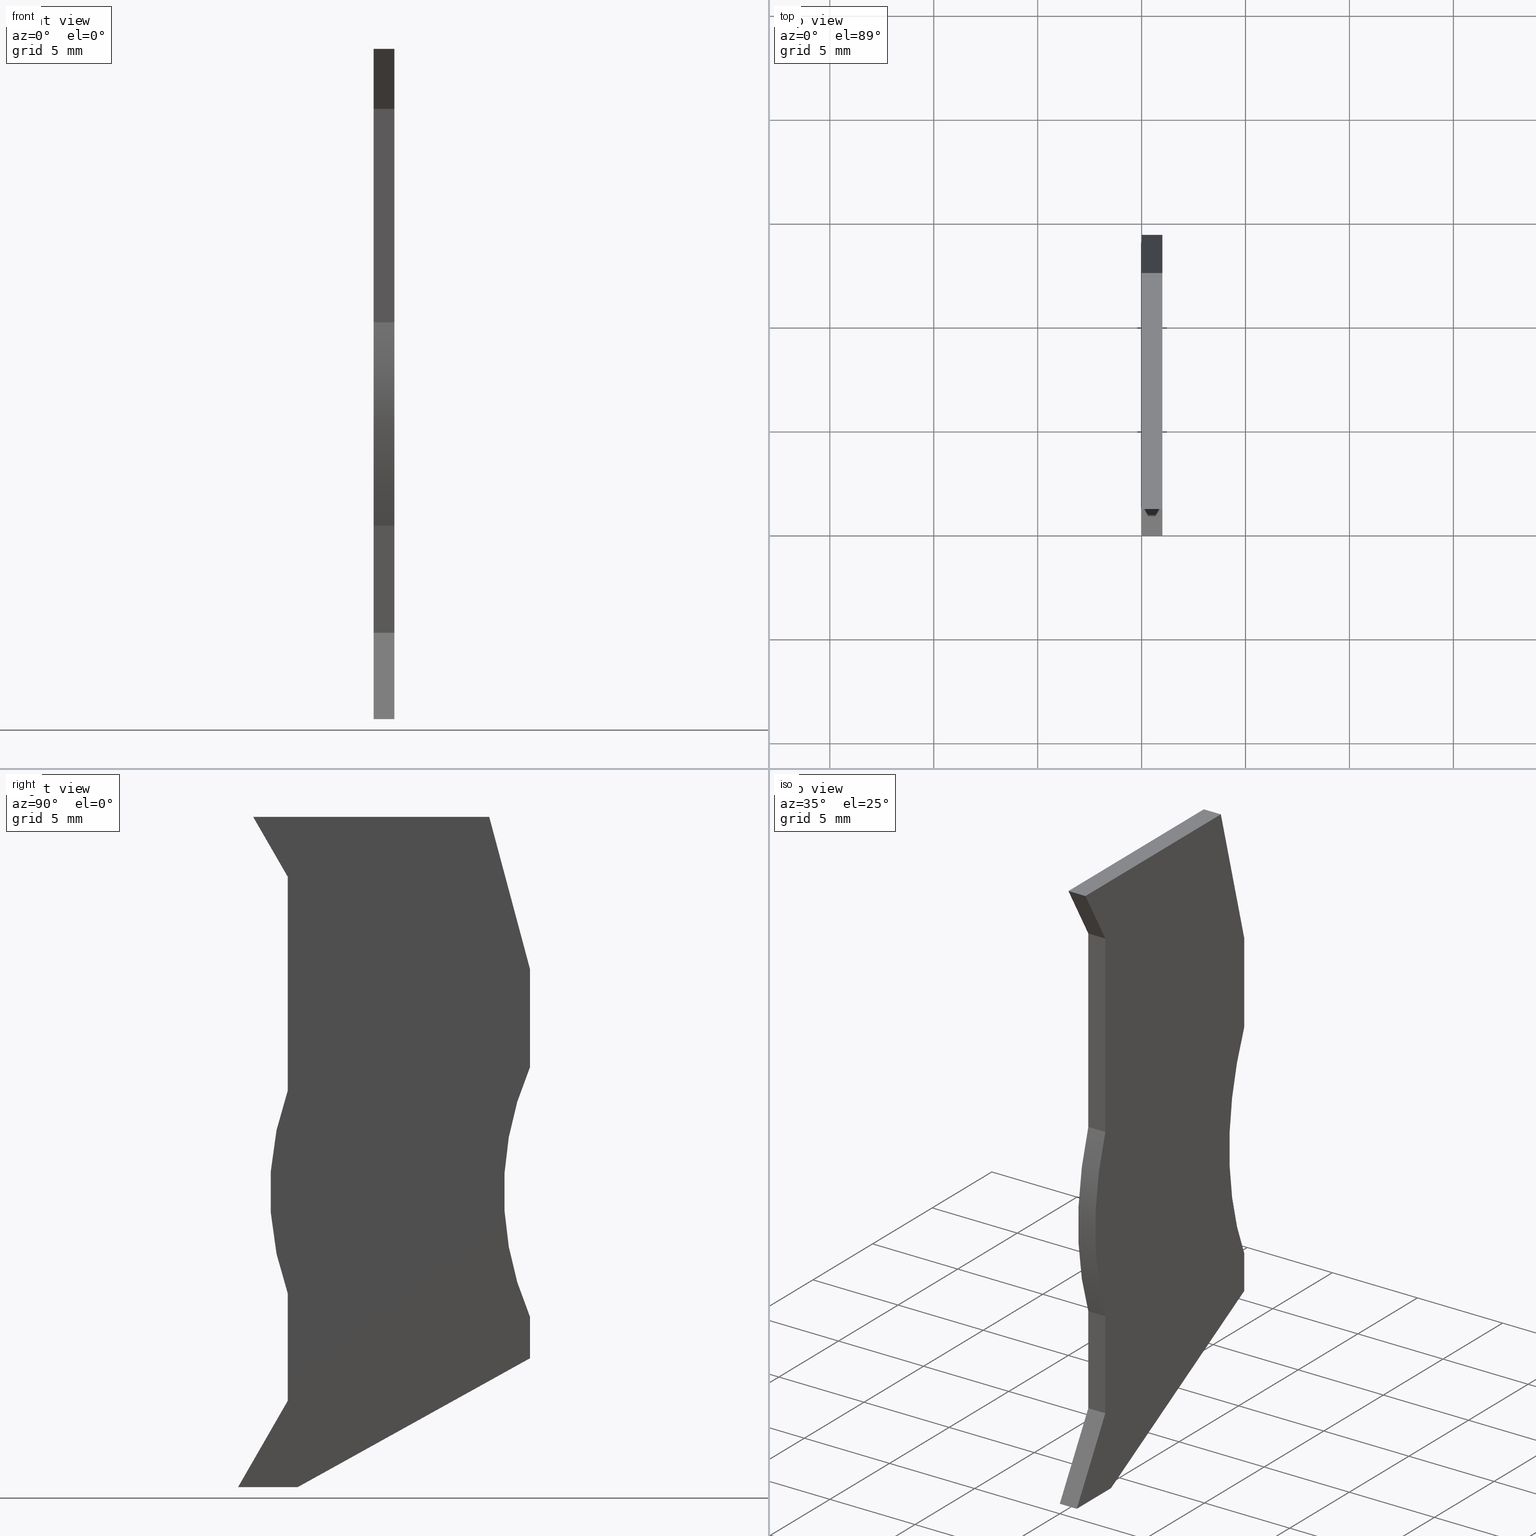
[diagram: canonical four-view strip — front | top / right | iso, engineering-drawing reading convention]
A machine part, canonical four-view strip (front | top / right | iso — engineering-drawing reading convention). The complete STEP part file that produces these views, byte-faithful:
ISO-10303-21;
HEADER;
FILE_DESCRIPTION(('Creo Elements/Direct Modeling STEP Export'),'2;1');
FILE_NAME(
'C:/temp/JobSpoolerServerData/JobServer Files/9aaa98fc-2ed4-4227-ac7a-e6
331463b2b5/work/output/model.stp','2020-01-20T12:26:51',(''),(''),
'Creo Elements/Direct Modeling STEP processor for AP214 (Solid Model)',
'Creo Elements/Direct Modeling 20.1A  29-Sep-2018 (C) Parametric Technol
ogy GmbH','');
FILE_SCHEMA(('AUTOMOTIVE_DESIGN { 1 0 10303 214 1 1 1 1 }'));
ENDSEC;
DATA;
#10=CARTESIAN_POINT('',(39.9798943065431,-27.2000000000027,50.9699976));
#20=DIRECTION('',(0.,0.,1.));
#30=DIRECTION('',(1.,0.,0.));
#40=AXIS2_PLACEMENT_3D('',#10,#20,#30);
#50=CYLINDRICAL_SURFACE('',#40,14.45);
#60=CARTESIAN_POINT('',(39.9798943065431,-27.2000000000027,54.17));
#70=DIRECTION('',(0.,0.,1.));
#80=DIRECTION('',(1.,0.,0.));
#90=AXIS2_PLACEMENT_3D('',#60,#70,#80);
#100=CIRCLE('',#90,14.45);
#110=CARTESIAN_POINT('',(26.3821672216756,-22.3107957574434,54.17));
#120=VERTEX_POINT('',#110);
#130=CARTESIAN_POINT('',(26.3821672216756,-32.0892042425621,54.17));
#140=VERTEX_POINT('',#130);
#150=EDGE_CURVE('',#120,#140,#100,.T.);
#160=ORIENTED_EDGE('',*,*,#150,.F.);
#170=CARTESIAN_POINT('',(26.3821672216756,-32.0892042425621,50.9699976))
;
#180=DIRECTION('',(0.,0.,1.));
#190=VECTOR('',#180,1.);
#200=LINE('',#170,#190);
#210=CARTESIAN_POINT('',(26.3821672216756,-32.0892042425621,53.17));
#220=VERTEX_POINT('',#210);
#230=EDGE_CURVE('',#220,#140,#200,.T.);
#240=ORIENTED_EDGE('',*,*,#230,.T.);
#250=CARTESIAN_POINT('',(39.9798943065431,-27.2000000000027,53.17));
#260=DIRECTION('',(0.,0.,1.));
#270=DIRECTION('',(1.,0.,0.));
#280=AXIS2_PLACEMENT_3D('',#250,#260,#270);
#290=CIRCLE('',#280,14.45);
#300=CARTESIAN_POINT('',(26.3821672216756,-22.3107957574434,53.17));
#310=VERTEX_POINT('',#300);
#320=EDGE_CURVE('',#310,#220,#290,.T.);
#330=ORIENTED_EDGE('',*,*,#320,.T.);
#340=CARTESIAN_POINT('',(26.3821672216756,-22.3107957574434,50.9699976))
;
#350=DIRECTION('',(0.,0.,1.));
#360=VECTOR('',#350,1.);
#370=LINE('',#340,#360);
#380=EDGE_CURVE('',#310,#120,#370,.T.);
#390=ORIENTED_EDGE('',*,*,#380,.F.);
#400=EDGE_LOOP('',(#390,#330,#240,#160));
#410=FACE_OUTER_BOUND('',#400,.T.);
#420=ADVANCED_FACE('',(#410),#50,.T.);
#430=COLOUR_RGB('',0.560784339904785,0.588235318660736,0.600000023841858
);
#440=FILL_AREA_STYLE_COLOUR('',#430);
#450=FILL_AREA_STYLE('',(#440));
#460=SURFACE_STYLE_FILL_AREA(#450);
#470=SURFACE_SIDE_STYLE('',(#460));
#480=SURFACE_STYLE_USAGE(.BOTH.,#470);
#490=PRESENTATION_STYLE_ASSIGNMENT((#480));
#500=CARTESIAN_POINT('',(26.3821672216756,-16.6907571511978,
53.6251825304374));
#510=DIRECTION('',(-1.,0.,0.));
#520=DIRECTION('',(0.,-1.,0.));
#530=AXIS2_PLACEMENT_3D('',#500,#510,#520);
#540=PLANE('',#530);
#550=CARTESIAN_POINT('',(26.3821672216756,-12.0389416166838,53.17));
#560=DIRECTION('',(0.,0.,1.));
#570=VECTOR('',#560,1.);
#580=LINE('',#550,#570);
#590=CARTESIAN_POINT('',(26.3821672216756,-12.0389416166838,53.17));
#600=VERTEX_POINT('',#590);
#610=CARTESIAN_POINT('',(26.3821672216756,-12.0389416166838,54.17));
#620=VERTEX_POINT('',#610);
#630=EDGE_CURVE('',#600,#620,#580,.T.);
#640=ORIENTED_EDGE('',*,*,#630,.F.);
#650=CARTESIAN_POINT('',(26.3821672216756,-12.1300507694265,54.17));
#660=DIRECTION('',(0.,1.,0.));
#670=VECTOR('',#660,1.);
#680=LINE('',#650,#670);
#690=EDGE_CURVE('',#120,#620,#680,.T.);
#700=ORIENTED_EDGE('',*,*,#690,.T.);
#710=ORIENTED_EDGE('',*,*,#380,.T.);
#720=CARTESIAN_POINT('',(26.3821672216756,-12.1300507694265,53.17));
#730=DIRECTION('',(0.,1.,0.));
#740=VECTOR('',#730,1.);
#750=LINE('',#720,#740);
#760=EDGE_CURVE('',#310,#600,#750,.T.);
#770=ORIENTED_EDGE('',*,*,#760,.F.);
#780=EDGE_LOOP('',(#770,#710,#700,#640));
#790=FACE_OUTER_BOUND('',#780,.T.);
#800=ADVANCED_FACE('',(#790),#540,.T.);
#810=COLOUR_RGB('',0.560784339904785,0.588235318660736,0.600000023841858
);
#820=FILL_AREA_STYLE_COLOUR('',#810);
#830=FILL_AREA_STYLE('',(#820));
#840=SURFACE_STYLE_FILL_AREA(#830);
#850=SURFACE_SIDE_STYLE('',(#840));
#860=SURFACE_STYLE_USAGE(.BOTH.,#850);
#870=PRESENTATION_STYLE_ASSIGNMENT((#860));
#880=CARTESIAN_POINT('',(20.5944734665811,-41.4000000000014,54.07));
#890=DIRECTION('',(0.,1.,0.));
#900=DIRECTION('',(0.,0.,-1.));
#910=AXIS2_PLACEMENT_3D('',#880,#890,#900);
#920=PLANE('',#910);
#930=CARTESIAN_POINT('',(11.4461541156283,-41.4000000000014,53.17));
#940=DIRECTION('',(1.,0.,0.));
#950=VECTOR('',#940,1.);
#960=LINE('',#930,#950);
#970=CARTESIAN_POINT('',(23.9882355597288,-41.4000000000014,53.17));
#980=VERTEX_POINT('',#970);
#990=CARTESIAN_POINT('',(26.8570992376999,-41.4000000000014,53.17));
#1000=VERTEX_POINT('',#990);
#1010=EDGE_CURVE('',#980,#1000,#960,.T.);
#1020=ORIENTED_EDGE('',*,*,#1010,.T.);
#1030=CARTESIAN_POINT('',(23.9882355597288,-41.4000000000014,53.17));
#1040=DIRECTION('',(0.,0.,1.));
#1050=VECTOR('',#1040,1.);
#1060=LINE('',#1030,#1050);
#1070=CARTESIAN_POINT('',(23.9882355597288,-41.4000000000014,54.17));
#1080=VERTEX_POINT('',#1070);
#1090=EDGE_CURVE('',#980,#1080,#1060,.T.);
#1100=ORIENTED_EDGE('',*,*,#1090,.F.);
#1110=CARTESIAN_POINT('',(11.4461541156283,-41.4000000000014,54.17));
#1120=DIRECTION('',(1.,0.,0.));
#1130=VECTOR('',#1120,1.);
#1140=LINE('',#1110,#1130);
#1150=CARTESIAN_POINT('',(26.8570992376999,-41.4000000000014,54.17));
#1160=VERTEX_POINT('',#1150);
#1170=EDGE_CURVE('',#1080,#1160,#1140,.T.);
#1180=ORIENTED_EDGE('',*,*,#1170,.F.);
#1190=CARTESIAN_POINT('',(26.8570992376999,-41.4000000000014,53.17));
#1200=DIRECTION('',(0.,0.,1.));
#1210=VECTOR('',#1200,1.);
#1220=LINE('',#1190,#1210);
#1230=EDGE_CURVE('',#1000,#1160,#1220,.T.);
#1240=ORIENTED_EDGE('',*,*,#1230,.T.);
#1250=EDGE_LOOP('',(#1240,#1180,#1100,#1020));
#1260=FACE_OUTER_BOUND('',#1250,.T.);
#1270=ADVANCED_FACE('',(#1260),#920,.F.);
#1280=COLOUR_RGB('',0.560784339904785,0.588235318660736,
0.600000023841858);
#1290=FILL_AREA_STYLE_COLOUR('',#1280);
#1300=FILL_AREA_STYLE('',(#1290));
#1310=SURFACE_STYLE_FILL_AREA(#1300);
#1320=SURFACE_SIDE_STYLE('',(#1310));
#1330=SURFACE_STYLE_USAGE(.BOTH.,#1320);
#1340=PRESENTATION_STYLE_ASSIGNMENT((#1330));
#1350=CARTESIAN_POINT('',(37.566407,-18.948959,54.17));
#1360=DIRECTION('',(0.,0.,1.));
#1370=DIRECTION('',(1.,0.,0.));
#1380=AXIS2_PLACEMENT_3D('',#1350,#1360,#1370);
#1390=PLANE('',#1380);
#1400=CARTESIAN_POINT('',(40.8323685970354,-12.1300507694265,54.17));
#1410=DIRECTION('',(0.498780693240353,0.86672822733004,0.));
#1420=VECTOR('',#1410,1.);
#1430=LINE('',#1400,#1420);
#1440=CARTESIAN_POINT('',(26.3821672216756,-37.2400792696525,54.17));
#1450=VERTEX_POINT('',#1440);
#1460=EDGE_CURVE('',#1080,#1450,#1430,.T.);
#1470=ORIENTED_EDGE('',*,*,#1460,.F.);
#1480=CARTESIAN_POINT('',(26.3821672216756,-12.1300507694265,54.17));
#1490=DIRECTION('',(0.,-1.,0.));
#1500=VECTOR('',#1490,1.);
#1510=LINE('',#1480,#1500);
#1520=EDGE_CURVE('',#140,#1450,#1510,.T.);
#1530=ORIENTED_EDGE('',*,*,#1520,.T.);
#1540=ORIENTED_EDGE('',*,*,#150,.T.);
#1550=ORIENTED_EDGE('',*,*,#690,.F.);
#1560=CARTESIAN_POINT('',(26.4347691155372,-12.1300507694265,54.17));
#1570=DIRECTION('',(0.499999999999997,-0.86602540378444,0.));
#1580=VECTOR('',#1570,1.);
#1590=LINE('',#1560,#1580);
#1600=CARTESIAN_POINT('',(24.7142360016119,-9.15000000000323,54.17));
#1610=VERTEX_POINT('',#1600);
#1620=EDGE_CURVE('',#1610,#620,#1590,.T.);
#1630=ORIENTED_EDGE('',*,*,#1620,.T.);
#1640=CARTESIAN_POINT('',(11.4461541156283,-9.15000000000323,54.17));
#1650=DIRECTION('',(1.,0.,0.));
#1660=VECTOR('',#1650,1.);
#1670=LINE('',#1640,#1660);
#1680=CARTESIAN_POINT('',(36.0719729923296,-9.15000000000323,54.17));
#1690=VERTEX_POINT('',#1680);
#1700=EDGE_CURVE('',#1610,#1690,#1670,.T.);
#1710=ORIENTED_EDGE('',*,*,#1700,.F.);
#1720=CARTESIAN_POINT('',(36.8704751894023,-12.1300507694265,54.17));
#1730=DIRECTION('',(0.258819045103111,-0.96592582628891,0.));
#1740=VECTOR('',#1730,1.);
#1750=LINE('',#1720,#1740);
#1760=CARTESIAN_POINT('',(38.0321672216756,-16.4655444566078,54.17));
#1770=VERTEX_POINT('',#1760);
#1780=EDGE_CURVE('',#1690,#1770,#1750,.T.);
#1790=ORIENTED_EDGE('',*,*,#1780,.F.);
#1800=CARTESIAN_POINT('',(38.0321672216756,-12.1300507694265,54.17));
#1810=DIRECTION('',(0.,-1.,0.));
#1820=VECTOR('',#1810,1.);
#1830=LINE('',#1800,#1820);
#1840=CARTESIAN_POINT('',(38.0321672216756,-21.2000000000027,54.17));
#1850=VERTEX_POINT('',#1840);
#1860=EDGE_CURVE('',#1770,#1850,#1830,.T.);
#1870=ORIENTED_EDGE('',*,*,#1860,.F.);
#1880=CARTESIAN_POINT('',(51.7798943065431,-27.2000000000027,54.17));
#1890=DIRECTION('',(0.,0.,1.));
#1900=DIRECTION('',(1.,0.,0.));
#1910=AXIS2_PLACEMENT_3D('',#1880,#1890,#1900);
#1920=CIRCLE('',#1910,15.);
#1930=CARTESIAN_POINT('',(38.0321672216756,-33.2000000000027,54.17));
#1940=VERTEX_POINT('',#1930);
#1950=EDGE_CURVE('',#1850,#1940,#1920,.T.);
#1960=ORIENTED_EDGE('',*,*,#1950,.F.);
#1970=CARTESIAN_POINT('',(38.0321672216756,-12.1300507694265,54.17));
#1980=DIRECTION('',(0.,-1.,0.));
#1990=VECTOR('',#1980,1.);
#2000=LINE('',#1970,#1990);
#2010=CARTESIAN_POINT('',(38.0321672216756,-35.2,54.17));
#2020=VERTEX_POINT('',#2010);
#2030=EDGE_CURVE('',#1940,#2020,#2000,.T.);
#2040=ORIENTED_EDGE('',*,*,#2030,.F.);
#2050=CARTESIAN_POINT('',(11.4461541156283,-49.9500920346875,54.17));
#2060=DIRECTION('',(-0.874435210897321,-0.485142311021167,0.));
#2070=VECTOR('',#2060,1.);
#2080=LINE('',#2050,#2070);
#2090=EDGE_CURVE('',#2020,#1160,#2080,.T.);
#2100=ORIENTED_EDGE('',*,*,#2090,.F.);
#2110=ORIENTED_EDGE('',*,*,#1170,.T.);
#2120=EDGE_LOOP('',(#2110,#2100,#2040,#1960,#1870,#1790,#1710,#1630,
#1550,#1540,#1530,#1470));
#2130=FACE_OUTER_BOUND('',#2120,.T.);
#2140=ADVANCED_FACE('',(#2130),#1390,.T.);
#2150=COLOUR_RGB('',0.560784339904785,0.588235318660736,
0.600000023841858);
#2160=FILL_AREA_STYLE_COLOUR('',#2150);
#2170=FILL_AREA_STYLE('',(#2160));
#2180=SURFACE_STYLE_FILL_AREA(#2170);
#2190=SURFACE_SIDE_STYLE('',(#2180));
#2200=SURFACE_STYLE_USAGE(.BOTH.,#2190);
#2210=PRESENTATION_STYLE_ASSIGNMENT((#2200));
#2220=CARTESIAN_POINT('',(-16.4428327783246,-9.15000000000323,53.17));
#2230=DIRECTION('',(-0.,1.,0.));
#2240=DIRECTION('',(1.,0.,0.));
#2250=AXIS2_PLACEMENT_3D('',#2220,#2230,#2240);
#2260=PLANE('',#2250);
#2270=CARTESIAN_POINT('',(36.0719729923296,-9.15000000000323,53.17));
#2280=DIRECTION('',(0.,0.,1.));
#2290=VECTOR('',#2280,1.);
#2300=LINE('',#2270,#2290);
#2310=CARTESIAN_POINT('',(36.0719729923296,-9.15000000000323,53.17));
#2320=VERTEX_POINT('',#2310);
#2330=EDGE_CURVE('',#2320,#1690,#2300,.T.);
#2340=ORIENTED_EDGE('',*,*,#2330,.F.);
#2350=ORIENTED_EDGE('',*,*,#1700,.T.);
#2360=CARTESIAN_POINT('',(24.7142360016119,-9.15000000000323,53.17));
#2370=DIRECTION('',(0.,0.,-1.));
#2380=VECTOR('',#2370,1.);
#2390=LINE('',#2360,#2380);
#2400=CARTESIAN_POINT('',(24.7142360016119,-9.15000000000323,53.17));
#2410=VERTEX_POINT('',#2400);
#2420=EDGE_CURVE('',#1610,#2410,#2390,.T.);
#2430=ORIENTED_EDGE('',*,*,#2420,.F.);
#2440=CARTESIAN_POINT('',(11.4461541156283,-9.15000000000323,53.17));
#2450=DIRECTION('',(1.,0.,0.));
#2460=VECTOR('',#2450,1.);
#2470=LINE('',#2440,#2460);
#2480=EDGE_CURVE('',#2410,#2320,#2470,.T.);
#2490=ORIENTED_EDGE('',*,*,#2480,.F.);
#2500=EDGE_LOOP('',(#2490,#2430,#2350,#2340));
#2510=FACE_OUTER_BOUND('',#2500,.T.);
#2520=ADVANCED_FACE('',(#2510),#2260,.T.);
#2530=COLOUR_RGB('',0.560784339904785,0.588235318660736,
0.600000023841858);
#2540=FILL_AREA_STYLE_COLOUR('',#2530);
#2550=FILL_AREA_STYLE('',(#2540));
#2560=SURFACE_STYLE_FILL_AREA(#2550);
#2570=SURFACE_SIDE_STYLE('',(#2560));
#2580=SURFACE_STYLE_USAGE(.BOTH.,#2570);
#2590=PRESENTATION_STYLE_ASSIGNMENT((#2580));
#2600=CARTESIAN_POINT('',(38.0321672216756,-33.2000000000027,53.17));
#2610=DIRECTION('',(1.,0.,0.));
#2620=DIRECTION('',(0.,-1.,0.));
#2630=AXIS2_PLACEMENT_3D('',#2600,#2610,#2620);
#2640=PLANE('',#2630);
#2650=CARTESIAN_POINT('',(38.0321672216756,-12.1300507694265,53.17));
#2660=DIRECTION('',(0.,-1.,0.));
#2670=VECTOR('',#2660,1.);
#2680=LINE('',#2650,#2670);
#2690=CARTESIAN_POINT('',(38.0321672216756,-33.2000000000027,53.17));
#2700=VERTEX_POINT('',#2690);
#2710=CARTESIAN_POINT('',(38.0321672216756,-35.2,53.17));
#2720=VERTEX_POINT('',#2710);
#2730=EDGE_CURVE('',#2700,#2720,#2680,.T.);
#2740=ORIENTED_EDGE('',*,*,#2730,.F.);
#2750=CARTESIAN_POINT('',(38.0321672216756,-35.2,53.17));
#2760=DIRECTION('',(0.,0.,1.));
#2770=VECTOR('',#2760,1.);
#2780=LINE('',#2750,#2770);
#2790=EDGE_CURVE('',#2720,#2020,#2780,.T.);
#2800=ORIENTED_EDGE('',*,*,#2790,.F.);
#2810=ORIENTED_EDGE('',*,*,#2030,.T.);
#2820=CARTESIAN_POINT('',(38.0321672216756,-33.2000000000027,53.17));
#2830=DIRECTION('',(0.,0.,1.));
#2840=VECTOR('',#2830,1.);
#2850=LINE('',#2820,#2840);
#2860=EDGE_CURVE('',#2700,#1940,#2850,.T.);
#2870=ORIENTED_EDGE('',*,*,#2860,.T.);
#2880=EDGE_LOOP('',(#2870,#2810,#2800,#2740));
#2890=FACE_OUTER_BOUND('',#2880,.T.);
#2900=ADVANCED_FACE('',(#2890),#2640,.T.);
#2910=COLOUR_RGB('',0.560784339904785,0.588235318660736,
0.600000023841858);
#2920=FILL_AREA_STYLE_COLOUR('',#2910);
#2930=FILL_AREA_STYLE('',(#2920));
#2940=SURFACE_STYLE_FILL_AREA(#2930);
#2950=SURFACE_SIDE_STYLE('',(#2940));
#2960=SURFACE_STYLE_USAGE(.BOTH.,#2950);
#2970=PRESENTATION_STYLE_ASSIGNMENT((#2960));
#2980=CARTESIAN_POINT('',(38.0321672216756,-16.5103385634681,53.17));
#2990=DIRECTION('',(1.,0.,0.));
#3000=DIRECTION('',(0.,-1.,0.));
#3010=AXIS2_PLACEMENT_3D('',#2980,#2990,#3000);
#3020=PLANE('',#3010);
#3030=CARTESIAN_POINT('',(38.0321672216756,-12.1300507694265,53.17));
#3040=DIRECTION('',(0.,-1.,0.));
#3050=VECTOR('',#3040,1.);
#3060=LINE('',#3030,#3050);
#3070=CARTESIAN_POINT('',(38.0321672216756,-16.4655444566078,53.17));
#3080=VERTEX_POINT('',#3070);
#3090=CARTESIAN_POINT('',(38.0321672216756,-21.2000000000027,53.17));
#3100=VERTEX_POINT('',#3090);
#3110=EDGE_CURVE('',#3080,#3100,#3060,.T.);
#3120=ORIENTED_EDGE('',*,*,#3110,.F.);
#3130=CARTESIAN_POINT('',(38.0321672216756,-21.2000000000027,53.17));
#3140=DIRECTION('',(0.,0.,1.));
#3150=VECTOR('',#3140,1.);
#3160=LINE('',#3130,#3150);
#3170=EDGE_CURVE('',#3100,#1850,#3160,.T.);
#3180=ORIENTED_EDGE('',*,*,#3170,.F.);
#3190=ORIENTED_EDGE('',*,*,#1860,.T.);
#3200=CARTESIAN_POINT('',(38.0321672216756,-16.4655444566078,53.17));
#3210=DIRECTION('',(0.,0.,1.));
#3220=VECTOR('',#3210,1.);
#3230=LINE('',#3200,#3220);
#3240=EDGE_CURVE('',#3080,#1770,#3230,.T.);
#3250=ORIENTED_EDGE('',*,*,#3240,.T.);
#3260=EDGE_LOOP('',(#3250,#3190,#3180,#3120));
#3270=FACE_OUTER_BOUND('',#3260,.T.);
#3280=ADVANCED_FACE('',(#3270),#3020,.T.);
#3290=COLOUR_RGB('',0.560784339904785,0.588235318660736,
0.600000023841858);
#3300=FILL_AREA_STYLE_COLOUR('',#3290);
#3310=FILL_AREA_STYLE('',(#3300));
#3320=SURFACE_STYLE_FILL_AREA(#3310);
#3330=SURFACE_SIDE_STYLE('',(#3320));
#3340=SURFACE_STYLE_USAGE(.BOTH.,#3330);
#3350=PRESENTATION_STYLE_ASSIGNMENT((#3340));
#3360=CARTESIAN_POINT('',(22.6426603830338,-43.7381979363723,54.17));
#3370=DIRECTION('',(0.485142311021167,-0.874435210897321,0.));
#3380=DIRECTION('',(-0.874435210897321,-0.485142311021167,0.));
#3390=AXIS2_PLACEMENT_3D('',#3360,#3370,#3380);
#3400=PLANE('',#3390);
#3410=ORIENTED_EDGE('',*,*,#2090,.T.);
#3420=ORIENTED_EDGE('',*,*,#2790,.T.);
#3430=CARTESIAN_POINT('',(11.4461541156283,-49.9500920346875,53.17));
#3440=DIRECTION('',(-0.874435210897321,-0.485142311021167,0.));
#3450=VECTOR('',#3440,1.);
#3460=LINE('',#3430,#3450);
#3470=EDGE_CURVE('',#2720,#1000,#3460,.T.);
#3480=ORIENTED_EDGE('',*,*,#3470,.F.);
#3490=ORIENTED_EDGE('',*,*,#1230,.F.);
#3500=EDGE_LOOP('',(#3490,#3480,#3420,#3410));
#3510=FACE_OUTER_BOUND('',#3500,.T.);
#3520=ADVANCED_FACE('',(#3510),#3400,.T.);
#3530=COLOUR_RGB('',0.560784339904785,0.588235318660736,
0.600000023841858);
#3540=FILL_AREA_STYLE_COLOUR('',#3530);
#3550=FILL_AREA_STYLE('',(#3540));
#3560=SURFACE_STYLE_FILL_AREA(#3550);
#3570=SURFACE_SIDE_STYLE('',(#3560));
#3580=SURFACE_STYLE_USAGE(.BOTH.,#3570);
#3590=PRESENTATION_STYLE_ASSIGNMENT((#3580));
#3600=CARTESIAN_POINT('',(-9.33507517498072,-22.9764073331224,53.17));
#3610=DIRECTION('',(0.,0.,-1.));
#3620=DIRECTION('',(-1.,0.,0.));
#3630=AXIS2_PLACEMENT_3D('',#3600,#3610,#3620);
#3640=PLANE('',#3630);
#3650=ORIENTED_EDGE('',*,*,#320,.F.);
#3660=CARTESIAN_POINT('',(26.3821672216756,-12.1300507694265,53.17));
#3670=DIRECTION('',(0.,-1.,0.));
#3680=VECTOR('',#3670,1.);
#3690=LINE('',#3660,#3680);
#3700=CARTESIAN_POINT('',(26.3821672216756,-37.2400792696525,53.17));
#3710=VERTEX_POINT('',#3700);
#3720=EDGE_CURVE('',#220,#3710,#3690,.T.);
#3730=ORIENTED_EDGE('',*,*,#3720,.F.);
#3740=CARTESIAN_POINT('',(40.8323685970354,-12.1300507694265,53.17));
#3750=DIRECTION('',(0.498780693240353,0.86672822733004,0.));
#3760=VECTOR('',#3750,1.);
#3770=LINE('',#3740,#3760);
#3780=EDGE_CURVE('',#980,#3710,#3770,.T.);
#3790=ORIENTED_EDGE('',*,*,#3780,.T.);
#3800=ORIENTED_EDGE('',*,*,#1010,.F.);
#3810=ORIENTED_EDGE('',*,*,#3470,.T.);
#3820=ORIENTED_EDGE('',*,*,#2730,.T.);
#3830=CARTESIAN_POINT('',(51.7798943065431,-27.2000000000027,53.17));
#3840=DIRECTION('',(0.,0.,1.));
#3850=DIRECTION('',(1.,0.,0.));
#3860=AXIS2_PLACEMENT_3D('',#3830,#3840,#3850);
#3870=CIRCLE('',#3860,15.);
#3880=EDGE_CURVE('',#3100,#2700,#3870,.T.);
#3890=ORIENTED_EDGE('',*,*,#3880,.T.);
#3900=ORIENTED_EDGE('',*,*,#3110,.T.);
#3910=CARTESIAN_POINT('',(36.8704751894023,-12.1300507694265,53.17));
#3920=DIRECTION('',(0.258819045103111,-0.96592582628891,0.));
#3930=VECTOR('',#3920,1.);
#3940=LINE('',#3910,#3930);
#3950=EDGE_CURVE('',#2320,#3080,#3940,.T.);
#3960=ORIENTED_EDGE('',*,*,#3950,.T.);
#3970=ORIENTED_EDGE('',*,*,#2480,.T.);
#3980=CARTESIAN_POINT('',(26.4347691155372,-12.1300507694265,53.17));
#3990=DIRECTION('',(-0.499999999999997,0.86602540378444,0.));
#4000=VECTOR('',#3990,1.);
#4010=LINE('',#3980,#4000);
#4020=EDGE_CURVE('',#600,#2410,#4010,.T.);
#4030=ORIENTED_EDGE('',*,*,#4020,.T.);
#4040=ORIENTED_EDGE('',*,*,#760,.T.);
#4050=EDGE_LOOP('',(#4040,#4030,#3970,#3960,#3900,#3890,#3820,#3810,
#3800,#3790,#3730,#3650));
#4060=FACE_OUTER_BOUND('',#4050,.T.);
#4070=ADVANCED_FACE('',(#4060),#3640,.T.);
#4080=COLOUR_RGB('',0.560784339904785,0.588235318660736,
0.600000023841858);
#4090=FILL_AREA_STYLE_COLOUR('',#4080);
#4100=FILL_AREA_STYLE('',(#4090));
#4110=SURFACE_STYLE_FILL_AREA(#4100);
#4120=SURFACE_SIDE_STYLE('',(#4110));
#4130=SURFACE_STYLE_USAGE(.BOTH.,#4120);
#4140=PRESENTATION_STYLE_ASSIGNMENT((#4130));
#4150=CARTESIAN_POINT('',(27.0172499578774,-36.1364997975199,54.17));
#4160=DIRECTION('',(-0.86672822733004,0.498780693240353,0.));
#4170=DIRECTION('',(0.498780693240353,0.86672822733004,0.));
#4180=AXIS2_PLACEMENT_3D('',#4150,#4160,#4170);
#4190=PLANE('',#4180);
#4200=ORIENTED_EDGE('',*,*,#3780,.F.);
#4210=CARTESIAN_POINT('',(26.3821672216756,-37.2400792696525,53.17));
#4220=DIRECTION('',(0.,0.,1.));
#4230=VECTOR('',#4220,1.);
#4240=LINE('',#4210,#4230);
#4250=EDGE_CURVE('',#3710,#1450,#4240,.T.);
#4260=ORIENTED_EDGE('',*,*,#4250,.F.);
#4270=ORIENTED_EDGE('',*,*,#1460,.T.);
#4280=ORIENTED_EDGE('',*,*,#1090,.T.);
#4290=EDGE_LOOP('',(#4280,#4270,#4260,#4200));
#4300=FACE_OUTER_BOUND('',#4290,.T.);
#4310=ADVANCED_FACE('',(#4300),#4190,.T.);
#4320=COLOUR_RGB('',0.560784339904785,0.588235318660736,
0.600000023841858);
#4330=FILL_AREA_STYLE_COLOUR('',#4320);
#4340=FILL_AREA_STYLE('',(#4330));
#4350=SURFACE_STYLE_FILL_AREA(#4340);
#4360=SURFACE_SIDE_STYLE('',(#4350));
#4370=SURFACE_STYLE_USAGE(.BOTH.,#4360);
#4380=PRESENTATION_STYLE_ASSIGNMENT((#4370));
#4390=CARTESIAN_POINT('',(36.0719729923293,-9.15000000000221,53.17));
#4400=DIRECTION('',(0.96592582628891,0.258819045103111,0.));
#4410=DIRECTION('',(0.258819045103111,-0.96592582628891,0.));
#4420=AXIS2_PLACEMENT_3D('',#4390,#4400,#4410);
#4430=PLANE('',#4420);
#4440=ORIENTED_EDGE('',*,*,#3950,.F.);
#4450=ORIENTED_EDGE('',*,*,#3240,.F.);
#4460=ORIENTED_EDGE('',*,*,#1780,.T.);
#4470=ORIENTED_EDGE('',*,*,#2330,.T.);
#4480=EDGE_LOOP('',(#4470,#4460,#4450,#4440));
#4490=FACE_OUTER_BOUND('',#4480,.T.);
#4500=ADVANCED_FACE('',(#4490),#4430,.T.);
#4510=COLOUR_RGB('',0.560784339904785,0.588235318660736,
0.600000023841858);
#4520=FILL_AREA_STYLE_COLOUR('',#4510);
#4530=FILL_AREA_STYLE('',(#4520));
#4540=SURFACE_STYLE_FILL_AREA(#4530);
#4550=SURFACE_SIDE_STYLE('',(#4540));
#4560=SURFACE_STYLE_USAGE(.BOTH.,#4550);
#4570=PRESENTATION_STYLE_ASSIGNMENT((#4560));
#4580=CARTESIAN_POINT('',(51.7798943065431,-27.2000000000027,53.17));
#4590=DIRECTION('',(0.,0.,1.));
#4600=DIRECTION('',(1.,0.,0.));
#4610=AXIS2_PLACEMENT_3D('',#4580,#4590,#4600);
#4620=CYLINDRICAL_SURFACE('',#4610,15.);
#4630=ORIENTED_EDGE('',*,*,#3170,.T.);
#4640=ORIENTED_EDGE('',*,*,#3880,.F.);
#4650=ORIENTED_EDGE('',*,*,#2860,.F.);
#4660=ORIENTED_EDGE('',*,*,#1950,.T.);
#4670=EDGE_LOOP('',(#4660,#4650,#4640,#4630));
#4680=FACE_OUTER_BOUND('',#4670,.T.);
#4690=ADVANCED_FACE('',(#4680),#4620,.F.);
#4700=COLOUR_RGB('',0.560784339904785,0.588235318660736,
0.600000023841858);
#4710=FILL_AREA_STYLE_COLOUR('',#4700);
#4720=FILL_AREA_STYLE('',(#4710));
#4730=SURFACE_STYLE_FILL_AREA(#4720);
#4740=SURFACE_SIDE_STYLE('',(#4730));
#4750=SURFACE_STYLE_USAGE(.BOTH.,#4740);
#4760=PRESENTATION_STYLE_ASSIGNMENT((#4750));
#4770=CARTESIAN_POINT('',(26.3151799235678,-11.9229162128994,53.17));
#4780=DIRECTION('',(-0.86602540378444,-0.499999999999997,0.));
#4790=DIRECTION('',(0.499999999999997,-0.86602540378444,0.));
#4800=AXIS2_PLACEMENT_3D('',#4770,#4780,#4790);
#4810=PLANE('',#4800);
#4820=ORIENTED_EDGE('',*,*,#2420,.T.);
#4830=ORIENTED_EDGE('',*,*,#1620,.F.);
#4840=ORIENTED_EDGE('',*,*,#630,.T.);
#4850=ORIENTED_EDGE('',*,*,#4020,.F.);
#4860=EDGE_LOOP('',(#4850,#4840,#4830,#4820));
#4870=FACE_OUTER_BOUND('',#4860,.T.);
#4880=ADVANCED_FACE('',(#4870),#4810,.T.);
#4890=COLOUR_RGB('',0.560784339904785,0.588235318660736,
0.600000023841858);
#4900=FILL_AREA_STYLE_COLOUR('',#4890);
#4910=FILL_AREA_STYLE('',(#4900));
#4920=SURFACE_STYLE_FILL_AREA(#4910);
#4930=SURFACE_SIDE_STYLE('',(#4920));
#4940=SURFACE_STYLE_USAGE(.BOTH.,#4930);
#4950=PRESENTATION_STYLE_ASSIGNMENT((#4940));
#4960=CARTESIAN_POINT('',(26.3821672216756,-16.4457965819755,50.9699976)
);
#4970=DIRECTION('',(1.,0.,0.));
#4980=DIRECTION('',(0.,-1.,0.));
#4990=AXIS2_PLACEMENT_3D('',#4960,#4970,#4980);
#5000=PLANE('',#4990);
#5010=ORIENTED_EDGE('',*,*,#3720,.T.);
#5020=ORIENTED_EDGE('',*,*,#230,.F.);
#5030=ORIENTED_EDGE('',*,*,#1520,.F.);
#5040=ORIENTED_EDGE('',*,*,#4250,.T.);
#5050=EDGE_LOOP('',(#5040,#5030,#5020,#5010));
#5060=FACE_OUTER_BOUND('',#5050,.T.);
#5070=ADVANCED_FACE('',(#5060),#5000,.F.);
#5080=COLOUR_RGB('',0.560784339904785,0.588235318660736,
0.600000023841858);
#5090=FILL_AREA_STYLE_COLOUR('',#5080);
#5100=FILL_AREA_STYLE('',(#5090));
#5110=SURFACE_STYLE_FILL_AREA(#5100);
#5120=SURFACE_SIDE_STYLE('',(#5110));
#5130=SURFACE_STYLE_USAGE(.BOTH.,#5120);
#5140=PRESENTATION_STYLE_ASSIGNMENT((#5130));
#5150=CLOSED_SHELL('',(#2520,#2900,#3280,#3520,#4070,#4310,#4500,#4690,
#4880,#5070,#420,#800,#1270,#2140));
#5160=MANIFOLD_SOLID_BREP('',#5150);
#5170=CARTESIAN_POINT('',(0.,0.,0.));
#5180=DIRECTION('',(0.,0.,1.));
#5190=DIRECTION('',(1.,0.,0.));
#5200=AXIS2_PLACEMENT_3D('',#5170,#5180,#5190);
#5210=APPLICATION_CONTEXT(' ');
#5220=APPLICATION_PROTOCOL_DEFINITION(' ','automotive_design',1998,#5210
);
#5230=PRODUCT_CONTEXT('',#5210,'mechanical');
#5240=PRODUCT_DEFINITION_CONTEXT('part definition',#5210,'design');
#5250=PRODUCT('DS-ST-2.5-LARGE-SELECT','DS-ST-2.5-LARGE-SELECT','',(
#5230));
#5260=PRODUCT_RELATED_PRODUCT_CATEGORY('part',' ',(#5250));
#5270=PRODUCT_DEFINITION_FORMATION_WITH_SPECIFIED_SOURCE('','',#5250,
.BOUGHT.);
#5280=PRODUCT_DEFINITION('',' ',#5270,#5240);
#5290=PRODUCT_DEFINITION_SHAPE('','',#5280);
#5300=DIMENSIONAL_EXPONENTS(1.,0.,0.,0.,0.,0.,0.);
#5310=DIMENSIONAL_EXPONENTS(0.,0.,0.,0.,0.,0.,0.);
#5320=DIMENSIONAL_EXPONENTS(0.,0.,0.,0.,0.,0.,0.);
#5330=(LENGTH_UNIT() NAMED_UNIT(*) SI_UNIT(.MILLI.,.METRE.));
#5340=(NAMED_UNIT(*) PLANE_ANGLE_UNIT() SI_UNIT($,.RADIAN.));
#5350=(NAMED_UNIT(*) SI_UNIT($,.STERADIAN.) SOLID_ANGLE_UNIT());
#5360=(GEOMETRIC_REPRESENTATION_CONTEXT(3) 
GLOBAL_UNCERTAINTY_ASSIGNED_CONTEXT((#5370)) 
GLOBAL_UNIT_ASSIGNED_CONTEXT((#5330,#5340,#5350)) REPRESENTATION_CONTEXT
('',''));
#5370=UNCERTAINTY_MEASURE_WITH_UNIT(LENGTH_MEASURE(1.E-6),#5330,
'distance_accuracy_value','maximum gap value');
#5380=ADVANCED_BREP_SHAPE_REPRESENTATION('',(#5200,#5160),#5360);
#5390=SHAPE_DEFINITION_REPRESENTATION(#5290,#5380);
#5400=COLOUR_RGB('',0.560784339904785,0.588235318660736,
0.600000023841858);
#5410=FILL_AREA_STYLE_COLOUR('',#5400);
#5420=FILL_AREA_STYLE('',(#5410));
#5430=SURFACE_STYLE_FILL_AREA(#5420);
#5440=SURFACE_SIDE_STYLE('',(#5430));
#5450=SURFACE_STYLE_USAGE(.BOTH.,#5440);
#5460=PRESENTATION_STYLE_ASSIGNMENT((#5450));
#5470=STYLED_ITEM('',(#5460),#5160);
#5480=OVER_RIDING_STYLED_ITEM('',(#490),#420,#5470);
#5490=OVER_RIDING_STYLED_ITEM('',(#870),#800,#5470);
#5500=OVER_RIDING_STYLED_ITEM('',(#1340),#1270,#5470);
#5510=OVER_RIDING_STYLED_ITEM('',(#2210),#2140,#5470);
#5520=OVER_RIDING_STYLED_ITEM('',(#2590),#2520,#5470);
#5530=OVER_RIDING_STYLED_ITEM('',(#2970),#2900,#5470);
#5540=OVER_RIDING_STYLED_ITEM('',(#3350),#3280,#5470);
#5550=OVER_RIDING_STYLED_ITEM('',(#3590),#3520,#5470);
#5560=OVER_RIDING_STYLED_ITEM('',(#4140),#4070,#5470);
#5570=OVER_RIDING_STYLED_ITEM('',(#4380),#4310,#5470);
#5580=OVER_RIDING_STYLED_ITEM('',(#4570),#4500,#5470);
#5590=OVER_RIDING_STYLED_ITEM('',(#4760),#4690,#5470);
#5600=OVER_RIDING_STYLED_ITEM('',(#4950),#4880,#5470);
#5610=OVER_RIDING_STYLED_ITEM('',(#5140),#5070,#5470);
#5620=DRAUGHTING_MODEL('',(#5470,#5480,#5490,#5500,#5510,#5520,#5530,
#5540,#5550,#5560,#5570,#5580,#5590,#5600,#5610),#5360);
#5630=CARTESIAN_POINT('',(-53.17,-23.9882355597756,41.4000000000011));
#5640=DIRECTION('',(1.,1.11022302462516E-16,0.));
#5650=DIRECTION('',(-1.11022302462516E-16,1.,0.));
#5660=AXIS2_PLACEMENT_3D('',#5630,#5640,#5650);
#5670=ITEM_DEFINED_TRANSFORMATION('DS-ST-2.5-LARGE-SELECT','',#5200,
#5660);
#5680=APPLICATION_CONTEXT(' ');
#5690=APPLICATION_PROTOCOL_DEFINITION(' ','automotive_design',1998,#5680
);
#5700=PRODUCT_CONTEXT('',#5680,'mechanical');
#5710=PRODUCT_DEFINITION_CONTEXT('part definition',#5680,'design');
#5720=PRODUCT('DS-ST-2.5-LARGE-SELECT','DS-ST-2.5-LARGE-SELECT','',(
#5700));
#5730=PRODUCT_RELATED_PRODUCT_CATEGORY('part',' ',(#5720));
#5740=PRODUCT_DEFINITION_FORMATION_WITH_SPECIFIED_SOURCE('','',#5720,
.BOUGHT.);
#5750=PRODUCT_DEFINITION('',' ',#5740,#5710);
#5760=PRODUCT_DEFINITION_SHAPE('','',#5750);
#5770=DIMENSIONAL_EXPONENTS(1.,0.,0.,0.,0.,0.,0.);
#5780=DIMENSIONAL_EXPONENTS(0.,0.,0.,0.,0.,0.,0.);
#5790=DIMENSIONAL_EXPONENTS(0.,0.,0.,0.,0.,0.,0.);
#5800=(LENGTH_UNIT() NAMED_UNIT(*) SI_UNIT(.MILLI.,.METRE.));
#5810=(NAMED_UNIT(*) PLANE_ANGLE_UNIT() SI_UNIT($,.RADIAN.));
#5820=(NAMED_UNIT(*) SI_UNIT($,.STERADIAN.) SOLID_ANGLE_UNIT());
#5830=(GEOMETRIC_REPRESENTATION_CONTEXT(3) 
GLOBAL_UNCERTAINTY_ASSIGNED_CONTEXT((#5840)) 
GLOBAL_UNIT_ASSIGNED_CONTEXT((#5800,#5810,#5820)) REPRESENTATION_CONTEXT
('',''));
#5840=UNCERTAINTY_MEASURE_WITH_UNIT(LENGTH_MEASURE(1.E-6),#5800,
'distance_accuracy_value','maximum gap value');
#5850=SHAPE_REPRESENTATION('',(#5200,#5660),#5830);
#5860=SHAPE_DEFINITION_REPRESENTATION(#5760,#5850);
#5870=(REPRESENTATION_RELATIONSHIP('','',#5380,#5850) 
REPRESENTATION_RELATIONSHIP_WITH_TRANSFORMATION(#5670) 
SHAPE_REPRESENTATION_RELATIONSHIP());
#5880=NEXT_ASSEMBLY_USAGE_OCCURRENCE('1','','DS-ST-2.5-LARGE-SELECT',
#5750,#5280,'');
#5890=PRODUCT_DEFINITION_SHAPE('','',#5880);
#5900=CONTEXT_DEPENDENT_SHAPE_REPRESENTATION(#5870,#5890);
ENDSEC;
END-ISO-10303-21;
